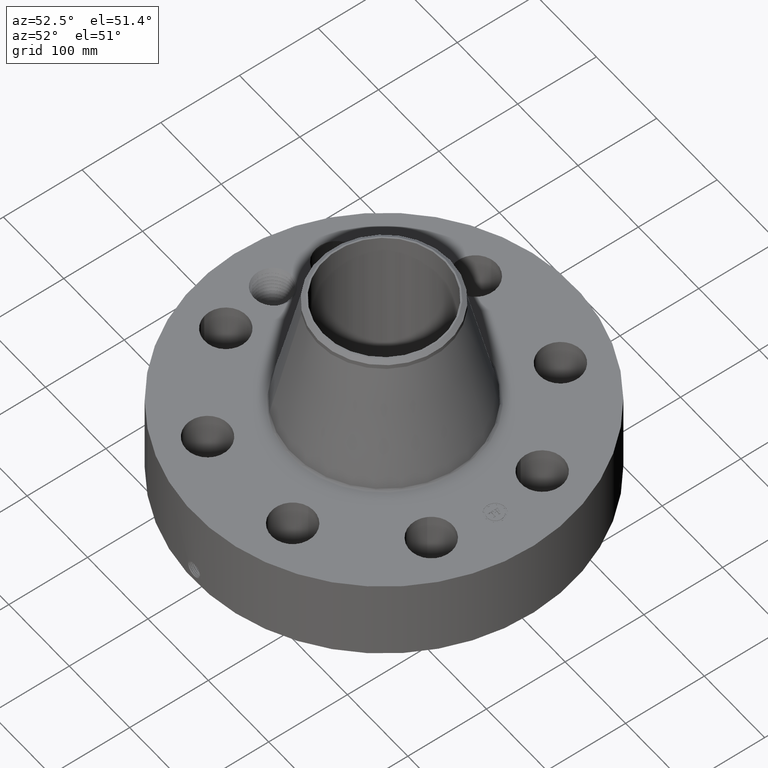
[diagram: clean part render]
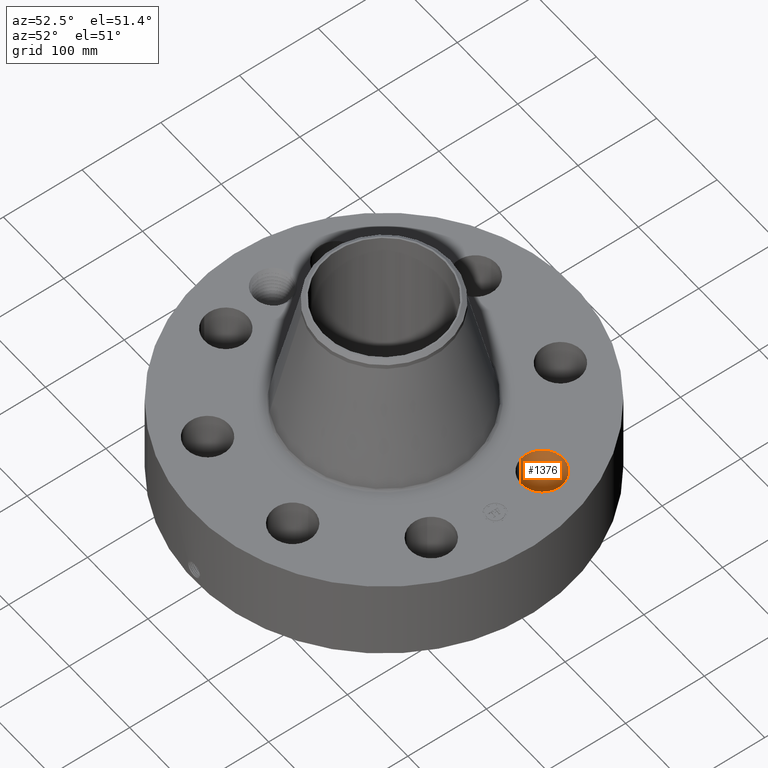
[diagram: same view with one face highlighted and labeled with its STEP entity id]
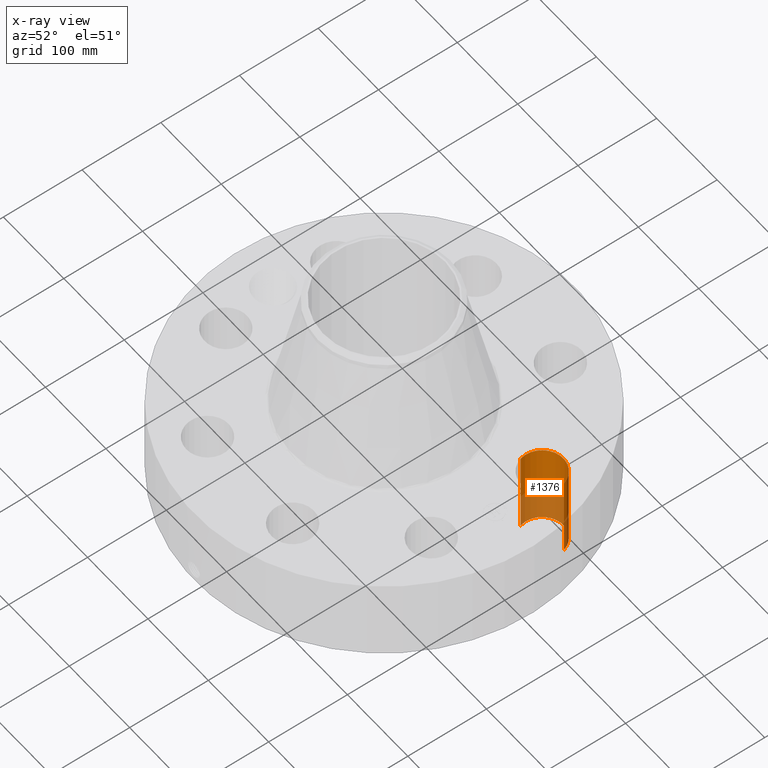
[diagram: x-ray of the same camera — body ghosted, the highlighted face saturated]
A machine part, auxiliary view. The second image highlights one B-rep face of the part: STEP entity #1376.
The next image is the same camera in x-ray: the body ghosted, the highlighted face saturated — about 41% of this face is hidden behind the body in this view.
In plain terms, the highlighted cylindrical surface (edge-blend (fillet) strip) has radius 26.924 mm, axis along (0, 0, -1).
Its self-contained STEP definition (entity closure, byte-faithful):
#388=AXIS2_PLACEMENT_3D('Circle Axis2P3D',#386,#387,$) ;
#726=AXIS2_PLACEMENT_3D('Circle Axis2P3D',#724,#725,$) ;
#1358=AXIS2_PLACEMENT_3D('Cylinder Axis2P3D',#1355,#1356,#1357) ;
#386=CARTESIAN_POINT('Axis2P3D Location',(6.69812661073,2.77445488466,0.250000000001)) ;
#390=CARTESIAN_POINT('Vertex',(5.68100400295,2.47602298165,0.250000000001)) ;
#392=CARTESIAN_POINT('Vertex',(7.71524921852,3.07288678767,0.250000000001)) ;
#719=CARTESIAN_POINT('Vertex',(7.71524921852,3.07288678767,4.50000000002)) ;
#721=CARTESIAN_POINT('Vertex',(5.68100400295,2.47602298165,4.50000000002)) ;
#724=CARTESIAN_POINT('Axis2P3D Location',(6.69812661073,2.77445488466,4.50000000002)) ;
#1355=CARTESIAN_POINT('Axis2P3D Location',(6.69812661073,2.77445488466,4.49606299214)) ;
#1360=CARTESIAN_POINT('Line Origine',(5.68100400295,2.47602298165,2.37500000001)) ;
#1365=CARTESIAN_POINT('Line Origine',(7.71524921852,3.07288678767,2.37500000001)) ;
#387=DIRECTION('Axis2P3D Direction',(0.,0.,-0.0393700787402)) ;
#725=DIRECTION('Axis2P3D Direction',(0.,0.,-0.0393700787402)) ;
#1356=DIRECTION('Axis2P3D Direction',(0.,0.,-0.0393700787402)) ;
#1357=DIRECTION('Axis2P3D XDirection',(0.0377775444876,0.0110842335096,0.)) ;
#1361=DIRECTION('Vector Direction',(0.,0.,-0.0393700787402)) ;
#1366=DIRECTION('Vector Direction',(0.,0.,-0.0393700787402)) ;
#1362=VECTOR('Line Direction',#1361,0.0393700787402) ;
#1367=VECTOR('Line Direction',#1366,0.0393700787402) ;
#1371=ORIENTED_EDGE('',*,*,#1364,.F.) ;
#1372=ORIENTED_EDGE('',*,*,#394,.T.) ;
#1373=ORIENTED_EDGE('',*,*,#1369,.T.) ;
#1374=ORIENTED_EDGE('',*,*,#728,.F.) ;
#1376=ADVANCED_FACE('PartBody',(#1375),#1359,.F.) ;
#389=CIRCLE('generated circle',#388,1.06) ;
#727=CIRCLE('generated circle',#726,1.06) ;
#1359=CYLINDRICAL_SURFACE('generated cylinder',#1358,1.06) ;
#394=EDGE_CURVE('',#391,#393,#389,.T.) ;
#728=EDGE_CURVE('',#722,#720,#727,.T.) ;
#1364=EDGE_CURVE('',#391,#722,#1363,.F.) ;
#1369=EDGE_CURVE('',#393,#720,#1368,.F.) ;
#1370=EDGE_LOOP('',(#1371,#1372,#1373,#1374)) ;
#1375=FACE_OUTER_BOUND('',#1370,.T.) ;
#1363=LINE('Line',#1360,#1362) ;
#1368=LINE('Line',#1365,#1367) ;
#391=VERTEX_POINT('',#390) ;
#393=VERTEX_POINT('',#392) ;
#720=VERTEX_POINT('',#719) ;
#722=VERTEX_POINT('',#721) ;